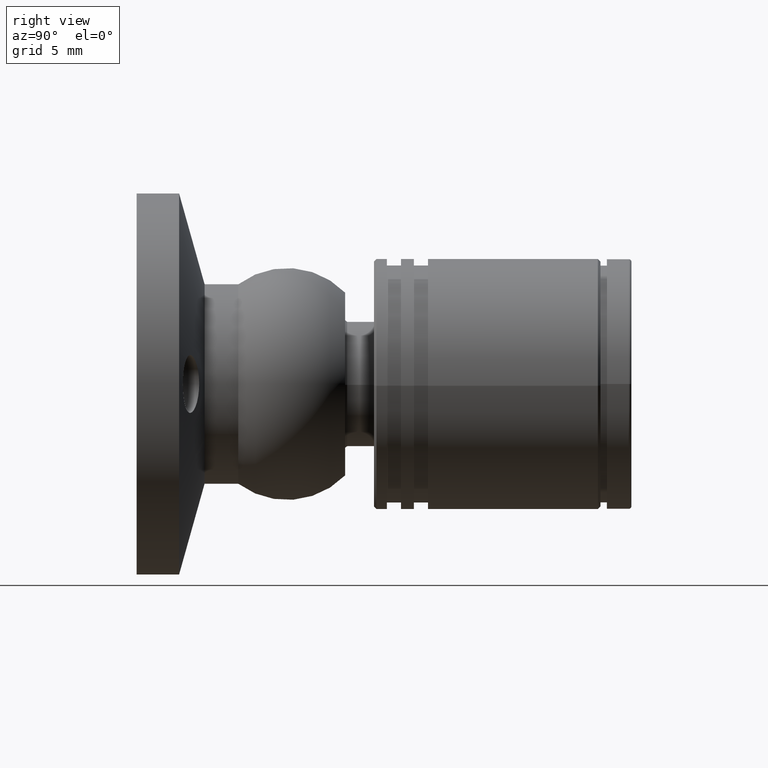
[diagram: clean part render]
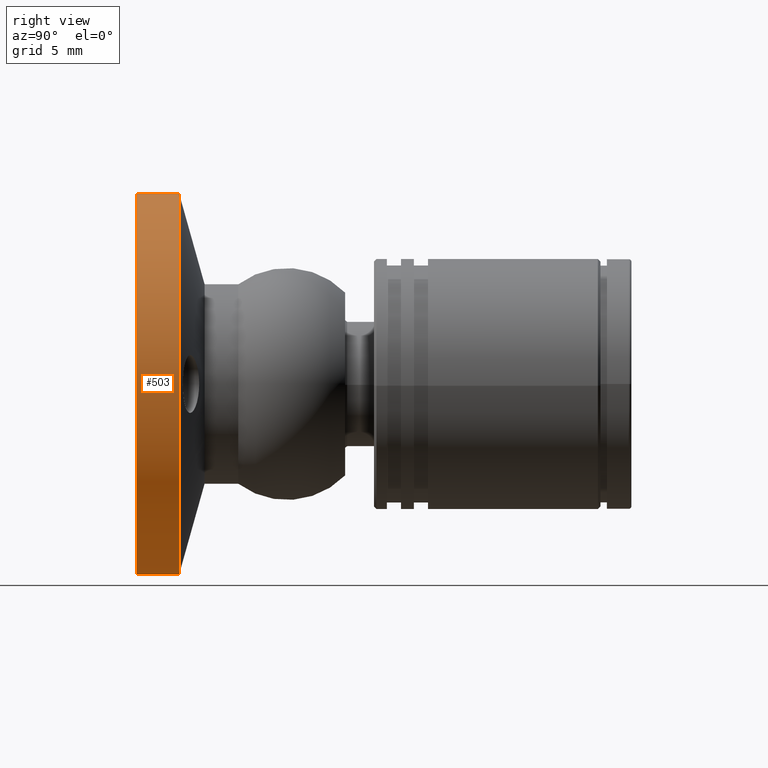
[diagram: same view with one face highlighted and labeled with its STEP entity id]
A machine part, right view. The second image highlights one B-rep face of the part: STEP entity #503.
In plain terms, the highlighted cylindrical surface (partial cylindrical patch) has radius 14.8 mm, axis along (-0, -1, -0).
Its self-contained STEP definition (entity closure, byte-faithful):
#503 = ADVANCED_FACE ( 'NONE', ( #8987 ), #1128, .T. ) ;
#707 = ORIENTED_EDGE ( 'NONE', *, *, #4695, .F. ) ;
#1128 = CYLINDRICAL_SURFACE ( 'NONE', #3163, 14.80000000000006821 ) ;
#1370 = DIRECTION ( 'NONE',  ( -0.000000000000000000, -1.000000000000000000, -0.000000000000000000 ) ) ;
#1388 = LINE ( 'NONE', #7646, #6982 ) ;
#1748 = EDGE_LOOP ( 'NONE', ( #8989, #6560, #5460, #707 ) ) ;
#1811 = EDGE_CURVE ( 'NONE', #8115, #2716, #5521, .T. ) ;
#1863 = CARTESIAN_POINT ( 'NONE',  ( 1.812477262738091158E-15, 0.000000000000000000, 14.80000000000006821 ) ) ;
#1876 = DIRECTION ( 'NONE',  ( -0.000000000000000000, -1.000000000000000000, -0.000000000000000000 ) ) ;
#2135 = DIRECTION ( 'NONE',  ( -0.000000000000000000, -1.000000000000000000, -0.000000000000000000 ) ) ;
#2590 = CARTESIAN_POINT ( 'NONE',  ( 0.000000000000000000, 3.299999999999997158, 0.000000000000000000 ) ) ;
#2716 = VERTEX_POINT ( 'NONE', #9047 ) ;
#2858 = CIRCLE ( 'NONE', #4609, 14.80000000000006821 ) ;
#3157 = DIRECTION ( 'NONE',  ( 0.000000000000000000, 0.000000000000000000, -1.000000000000000000 ) ) ;
#3163 = AXIS2_PLACEMENT_3D ( 'NONE', #6341, #2135, #5793 ) ;
#3407 = DIRECTION ( 'NONE',  ( -0.000000000000000000, -1.000000000000000000, -0.000000000000000000 ) ) ;
#3506 = CARTESIAN_POINT ( 'NONE',  ( 0.000000000000000000, -2.351338188525915029, -14.80000000000006821 ) ) ;
#4601 = CARTESIAN_POINT ( 'NONE',  ( 0.000000000000000000, 3.299999999999997158, -14.80000000000006821 ) ) ;
#4609 = AXIS2_PLACEMENT_3D ( 'NONE', #8996, #6080, #3157 ) ;
#4695 = EDGE_CURVE ( 'NONE', #8115, #9368, #6922, .T. ) ;
#4792 = CARTESIAN_POINT ( 'NONE',  ( 0.000000000000000000, 0.000000000000000000, -14.80000000000006821 ) ) ;
#5460 = ORIENTED_EDGE ( 'NONE', *, *, #8170, .F. ) ;
#5521 = CIRCLE ( 'NONE', #5572, 14.80000000000006821 ) ;
#5572 = AXIS2_PLACEMENT_3D ( 'NONE', #2590, #3407, #8527 ) ;
#5793 = DIRECTION ( 'NONE',  ( 0.000000000000000000, 0.000000000000000000, -1.000000000000000000 ) ) ;
#6080 = DIRECTION ( 'NONE',  ( -0.000000000000000000, -1.000000000000000000, -0.000000000000000000 ) ) ;
#6341 = CARTESIAN_POINT ( 'NONE',  ( 0.000000000000000000, -2.351338188525915029, 0.000000000000000000 ) ) ;
#6560 = ORIENTED_EDGE ( 'NONE', *, *, #8771, .T. ) ;
#6922 = LINE ( 'NONE', #3506, #7829 ) ;
#6982 = VECTOR ( 'NONE', #1876, 1000.000000000000000 ) ;
#7646 = CARTESIAN_POINT ( 'NONE',  ( 1.812477262738091158E-15, -2.351338188525915029, 14.80000000000006821 ) ) ;
#7829 = VECTOR ( 'NONE', #1370, 1000.000000000000000 ) ;
#8115 = VERTEX_POINT ( 'NONE', #4601 ) ;
#8170 = EDGE_CURVE ( 'NONE', #9368, #9332, #2858, .T. ) ;
#8527 = DIRECTION ( 'NONE',  ( 0.000000000000000000, 0.000000000000000000, -1.000000000000000000 ) ) ;
#8771 = EDGE_CURVE ( 'NONE', #2716, #9332, #1388, .T. ) ;
#8987 = FACE_OUTER_BOUND ( 'NONE', #1748, .T. ) ;
#8989 = ORIENTED_EDGE ( 'NONE', *, *, #1811, .T. ) ;
#8996 = CARTESIAN_POINT ( 'NONE',  ( 0.000000000000000000, 0.000000000000000000, 0.000000000000000000 ) ) ;
#9047 = CARTESIAN_POINT ( 'NONE',  ( 1.812477262738091158E-15, 3.299999999999997158, 14.80000000000006821 ) ) ;
#9332 = VERTEX_POINT ( 'NONE', #1863 ) ;
#9368 = VERTEX_POINT ( 'NONE', #4792 ) ;